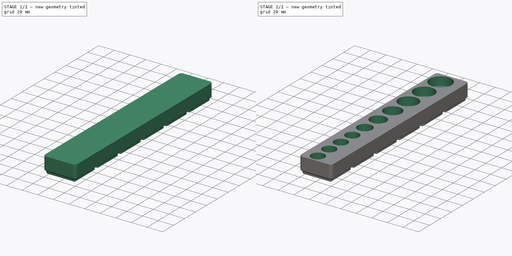
[diagram: build sequence overview — one tinted view per stage of 2, left to right]
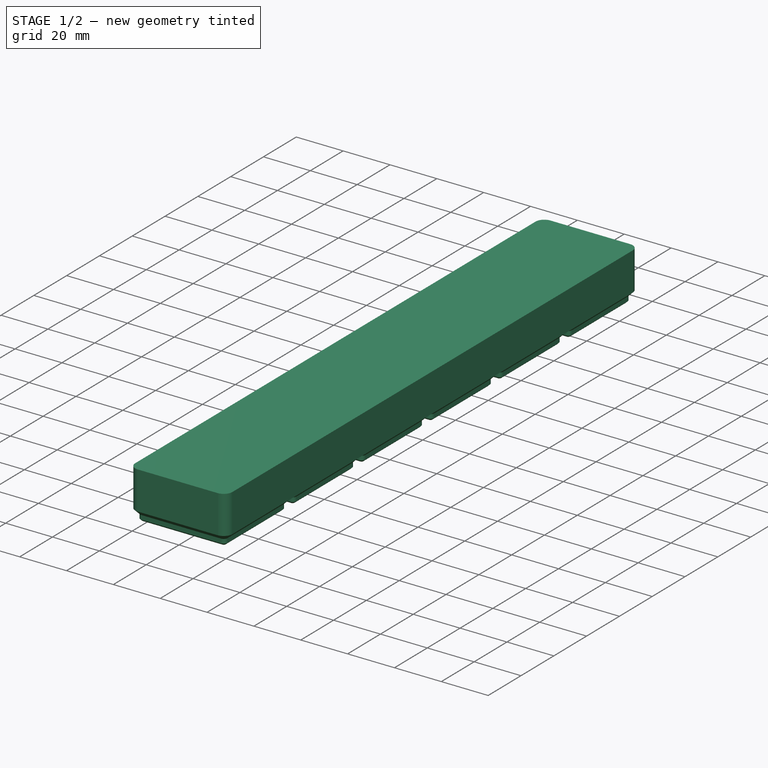
[diagram: stage 1 of 2 — iso view after this stage's code; geometry added in this stage tinted green]
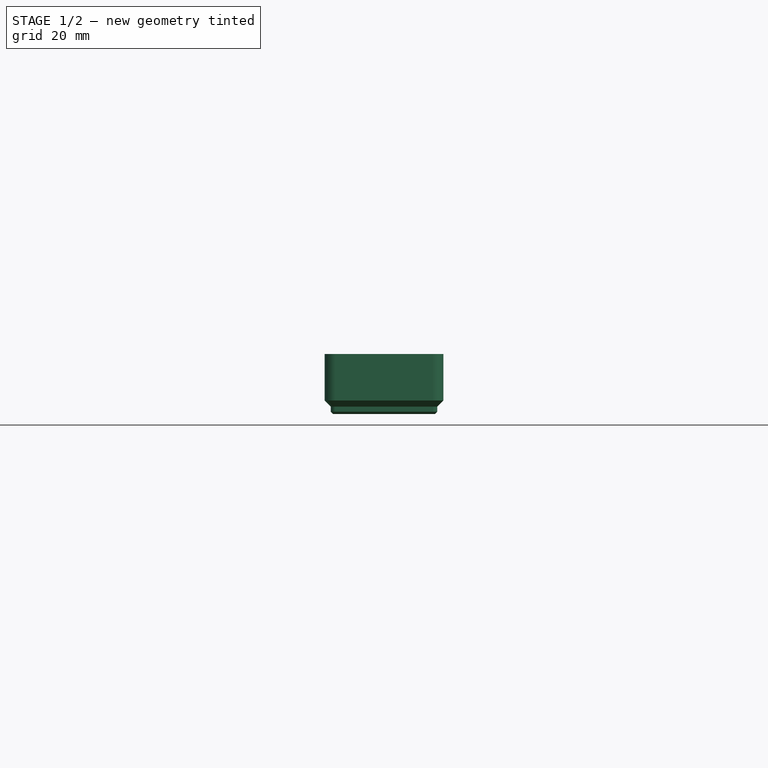
[diagram: stage 1 of 2 — front view after this stage's code; geometry added in this stage tinted green]
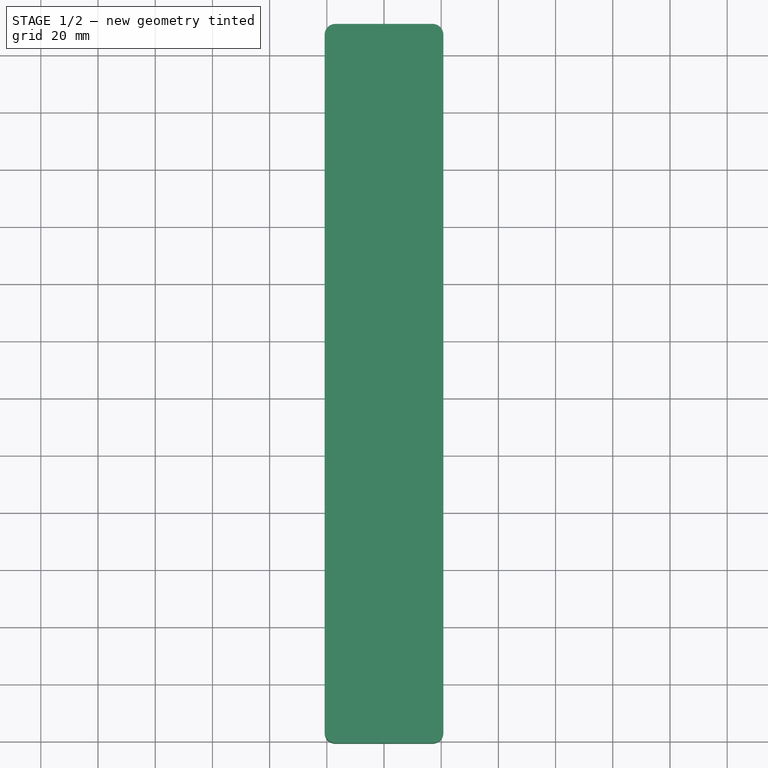
[diagram: stage 1 of 2 — top view after this stage's code; geometry added in this stage tinted green]
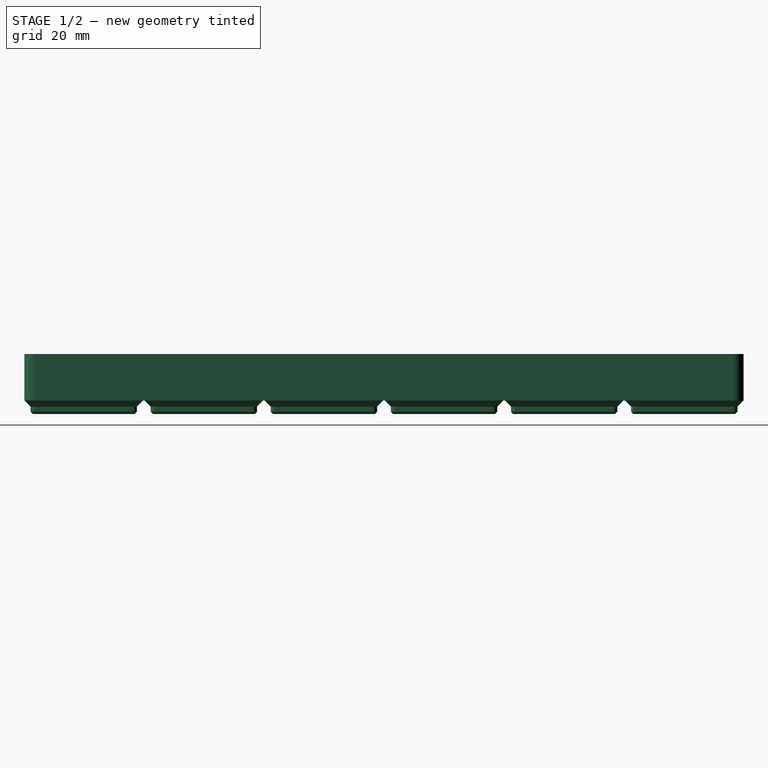
[diagram: stage 1 of 2 — right view after this stage's code; geometry added in this stage tinted green]
FCSTD DOCUMENT  (FreeCAD 0.21R33771 (Git))
Label: SAE_1x6_Sockets_gridfinity
License: All rights reserved
LicenseURL: http://en.wikipedia.org/wiki/All_rights_reserved
objects: PartDesign::FeaturePython×1, Sketcher::SketchObject×1, PartDesign::Pocket×1, PartDesign::Body×1
note: 5 computed .brp shape members not serialized (recipe doc carries the construction recipe); baked Part::Feature solids carry a one-line shape summary decoded from their .brp

FEATURE [PartDesign::FeaturePython] BinBlank  # WARN: FeaturePython — macro-defined, semantics opaque (R4)
  BaseProfileBottomChamfer = 0.8
  BaseProfileHeight = 4.75
  BaseProfileTopChamfer = 2.15
  BaseProfileVerticalSection = 1.8
  BinBottomRadius = 0.8
  BinOuterRadius = 3.75
  BinUnit = 41.5
  BinVerticalRadius = 1.6
  CustomHeight = 42
  GridSize = 42
  HeightUnitValue = 7
  HeightUnits = 3
  MagnetHoleDepth = 2.4
  MagnetHoleDiameter = 6.5
  MagnetHoleDistanceFromEdge = 8
  MagnetHoles = false
  NonStandardHeight = false
  ScrewHoleDepth = 6
  ScrewHoleDiameter = 3
  ScrewHoles = false
  SequentialBridgingLayerHeight = 0.2
  StackingLip = false
  StackingLipBottomChamfer = 0.7
  StackingLipTopChamfer = 1.5
  StackingLipTopLedge = 0.4
  StackingLipVerticalSection = 1.8
  Tolerance = 0.25
  TotalHeight = 21
  WallThickness = 1
  version = 0.5.0
  xGridUnits = 1
  xTotalWidth = 41.5
  yGridUnits = 6
  yTotalWidth = 251.5
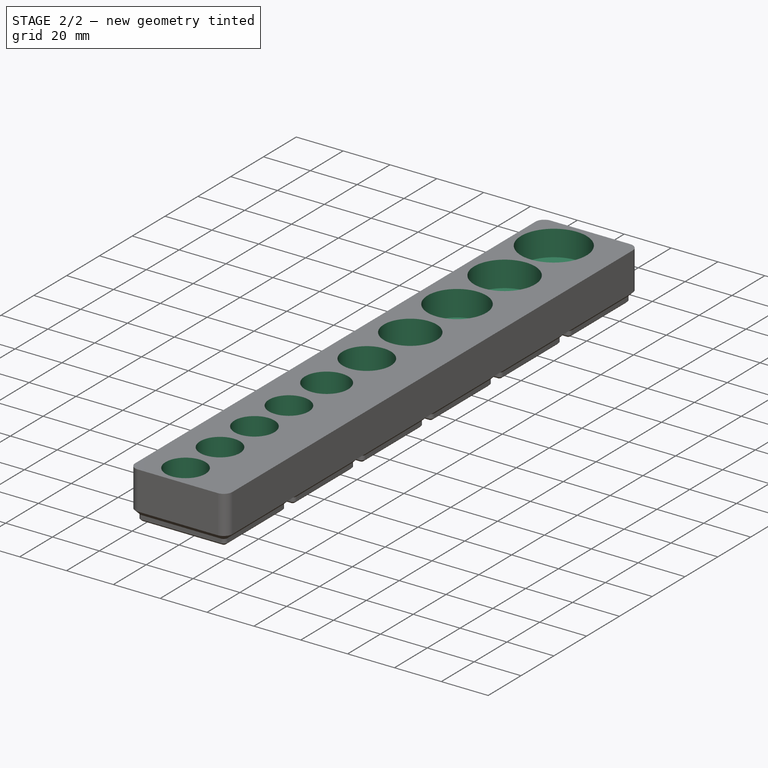
[diagram: stage 2 of 2 — iso view after this stage's code; geometry added in this stage tinted green]
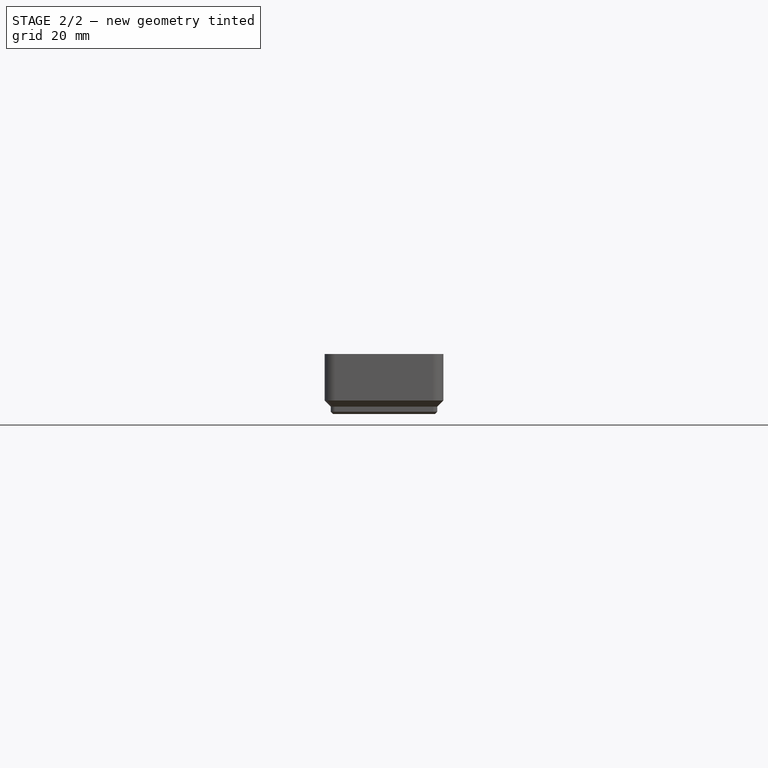
[diagram: stage 2 of 2 — front view after this stage's code; geometry added in this stage tinted green]
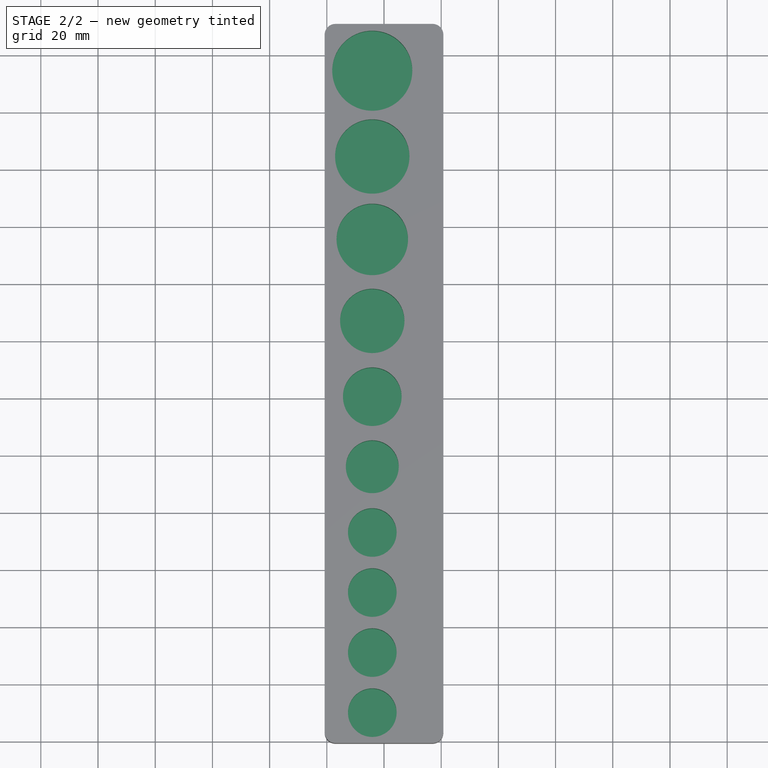
[diagram: stage 2 of 2 — top view after this stage's code; geometry added in this stage tinted green]
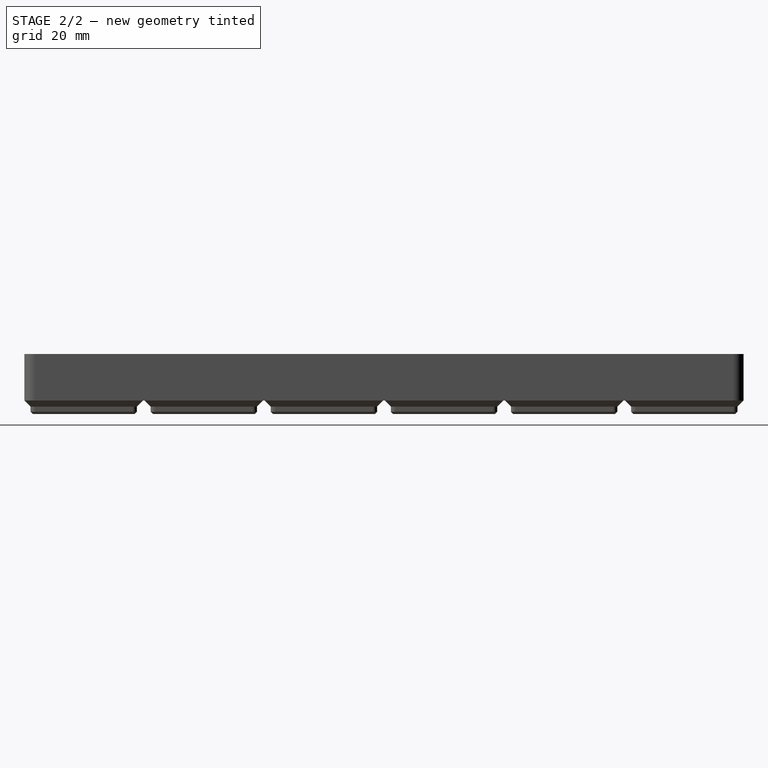
[diagram: stage 2 of 2 — right view after this stage's code; geometry added in this stage tinted green]
FEATURE [Sketcher::SketchObject] Sketch
  FullyConstrained = false
  MapMode = 5
  Placement = pos=(0,0,-3.6e-15) rot=(0,0,1;0rad)
  Support = -> [BinBlank]
  sketch-geometry (10):
    g0: Circle CenterX=-4.09703 CenterY=-10.1207 CenterZ=0 NormalX=0 NormalY=0 NormalZ=1 AngleXU=0 Radius=8.5
    g1: Circle CenterX=-4.09703 CenterY=10.8793 CenterZ=0 NormalX=0 NormalY=0 NormalZ=1 AngleXU=0 Radius=8.5
    g2: Circle CenterX=-4.09703 CenterY=31.8793 CenterZ=0 NormalX=0 NormalY=0 NormalZ=1 AngleXU=0 Radius=8.5
    g3: Circle CenterX=-4.09703 CenterY=52.8793 CenterZ=0 NormalX=0 NormalY=0 NormalZ=1 AngleXU=0 Radius=8.5
    g4: Circle CenterX=-4.09703 CenterY=75.8793 CenterZ=0 NormalX=0 NormalY=0 NormalZ=1 AngleXU=0 Radius=9.25
    g5: Circle CenterX=-4.09703 CenterY=100.379 CenterZ=0 NormalX=0 NormalY=0 NormalZ=1 AngleXU=0 Radius=10.25
    g6: Circle CenterX=-4.09703 CenterY=126.879 CenterZ=0 NormalX=0 NormalY=0 NormalZ=1 AngleXU=0 Radius=11.25
    g7: Circle CenterX=-4.09703 CenterY=155.379 CenterZ=0 NormalX=0 NormalY=0 NormalZ=1 AngleXU=0 Radius=12.5
    g8: Circle CenterX=-4.09703 CenterY=184.379 CenterZ=0 NormalX=0 NormalY=0 NormalZ=1 AngleXU=0 Radius=13
    g9: Circle CenterX=-4.09703 CenterY=214.379 CenterZ=0 NormalX=0 NormalY=0 NormalZ=1 AngleXU=0 Radius=14
  constraints (28):
    c: Diameter(g0) = 17
    c: Equal(g0,g1)
    c: Equal(g1,g2)
    c: Equal(g2,g3)
    c: Diameter(g4) = 18.5
    c: Diameter(g5) = 20.5
    c: Diameter(g6) = 22.5
    c: Diameter(g7) = 25
    c: Diameter(g8) = 26
    c: Diameter(g9) = 28
    c: DistanceY(g8,g9) = 30
    c: DistanceY(g7,g8) = 29
    c: DistanceY(g6,g7) = 28.5
    c: DistanceY(g5,g6) = 26.5
    c: DistanceY(g4,g5) = 24.5
    c: DistanceY(g3,g4) = 23
    c: DistanceY(g2,g3) = 21
    c: DistanceY(g1,g2) = 21
    c: DistanceY(g0,g1) = 21
    c: Vertical(g0,g1)
    c: Vertical(g1,g2)
    c: Vertical(g2,g3)
    c: Vertical(g3,g4)
    c: Vertical(g4,g5)
    c: Vertical(g5,g6)
    c: Vertical(g6,g7)
    c: Vertical(g7,g8)
    c: Vertical(g8,g9)
FEATURE [PartDesign::Pocket] Pocket
  BaseFeature = -> BinBlank
  Direction = (0,0,-1)
  Length = 11
  Length2 = 5
  Profile = -> Sketch
  ReferenceAxis = -> Sketch [N_Axis]
  Type = 0
FEATURE [PartDesign::Body] Body
  Group = -> [BinBlank,Sketch,Pocket]
  Origin = -> Origin
  Tip = -> Pocket
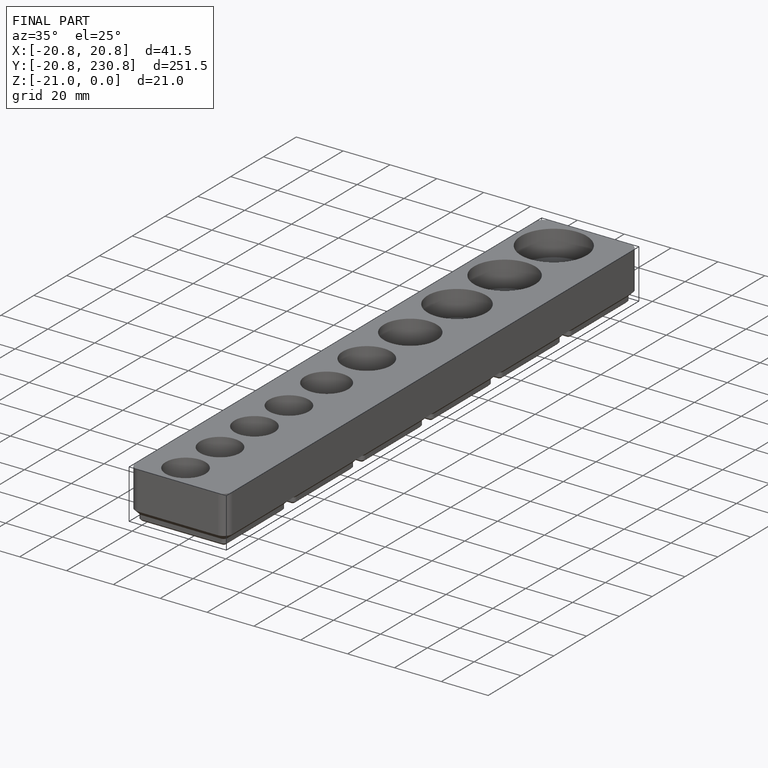
[diagram: finished part — iso view with bounding-box wireframe]
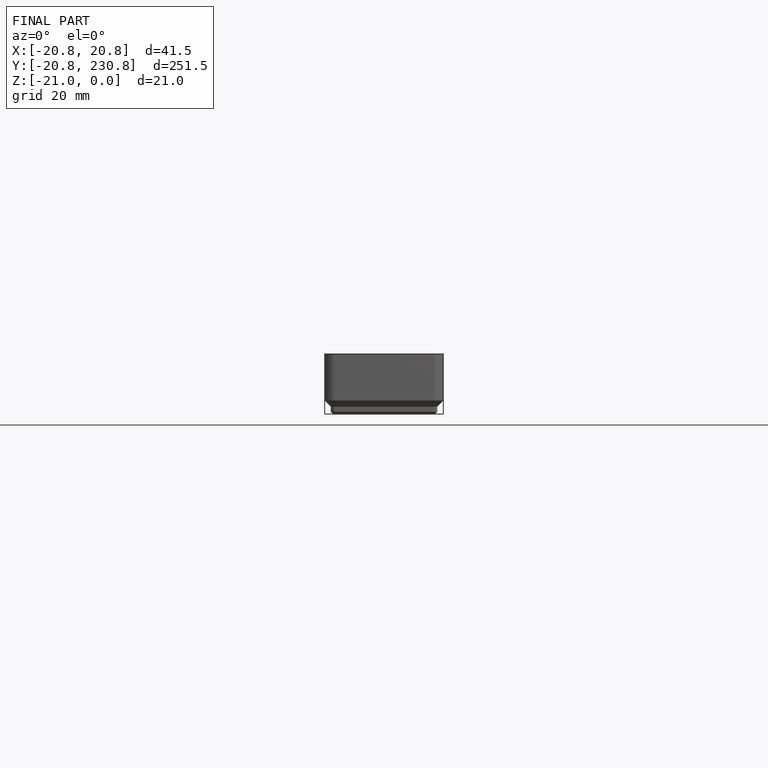
[diagram: finished part — front view with bounding-box wireframe]
